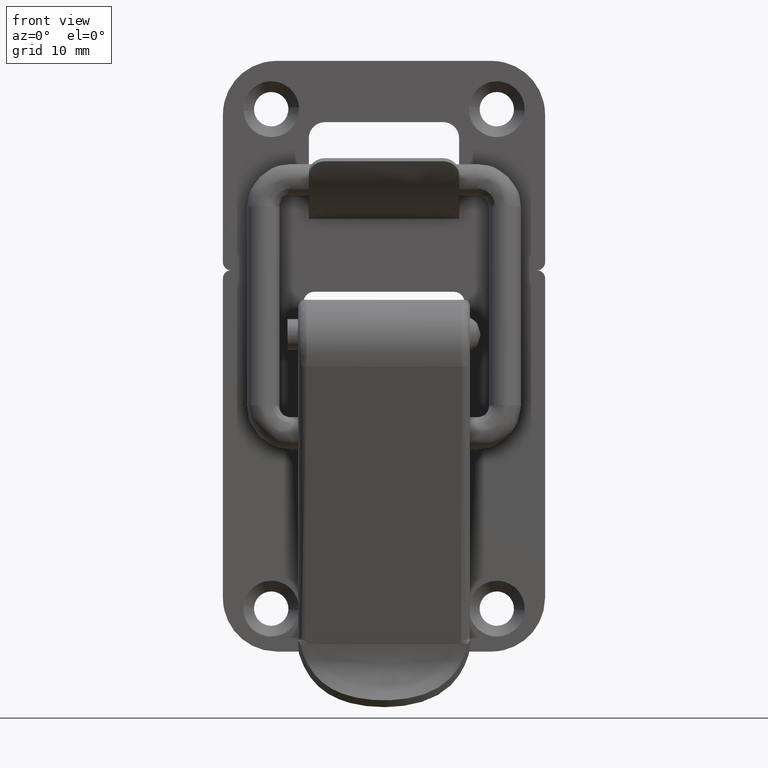
[diagram: clean part render]
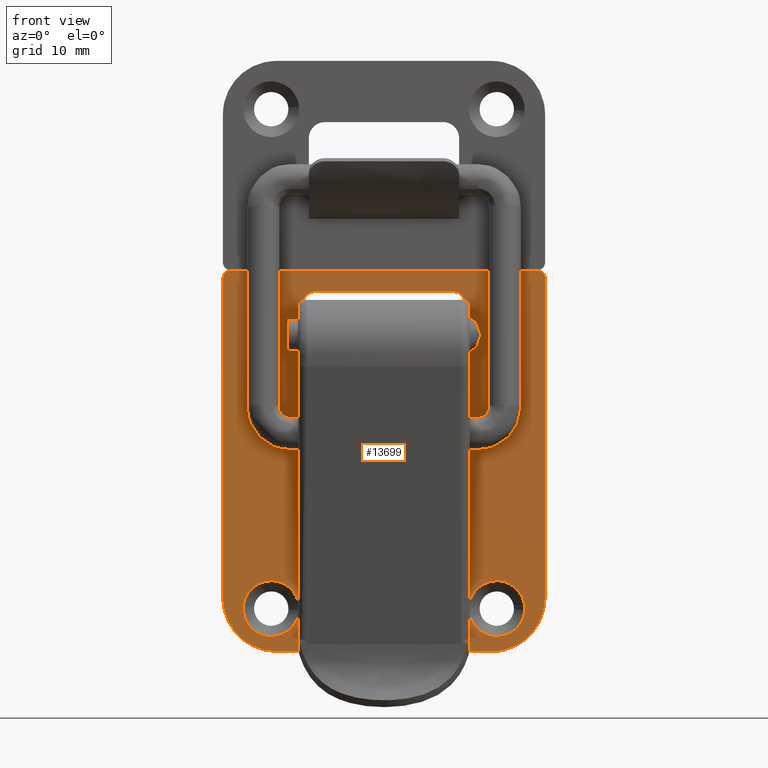
[diagram: same view with one face highlighted and labeled with its STEP entity id]
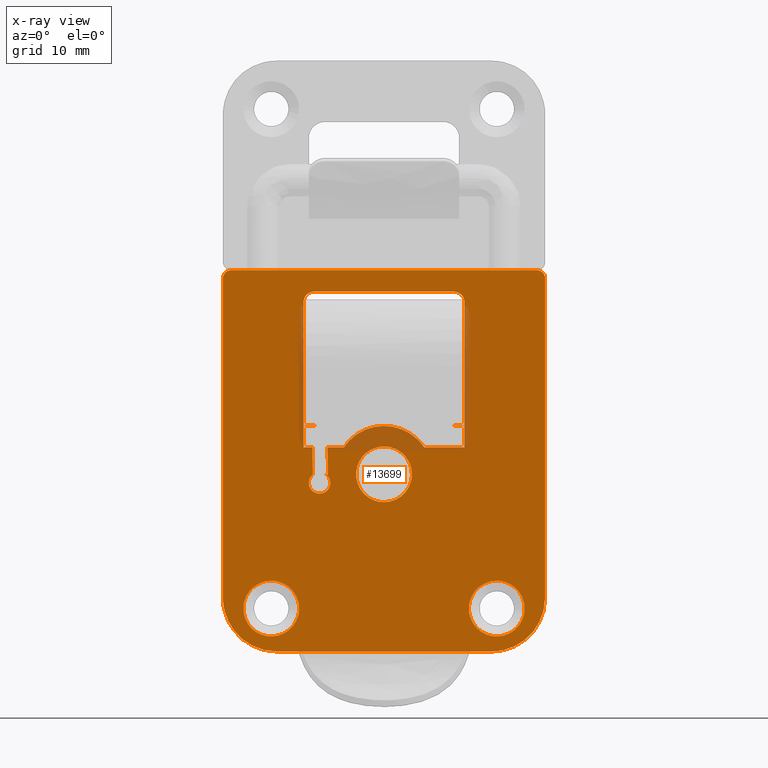
[diagram: x-ray of the same camera — body ghosted, the highlighted face saturated]
A machine part, front view. The second image highlights one B-rep face of the part: STEP entity #13699.
The next image is the same camera in x-ray: the body ghosted, the highlighted face saturated — about 3% of this face is hidden behind the body in this view.
In plain terms, the highlighted face is a freeform B-spline surface patch.
Its self-contained STEP definition (entity closure, byte-faithful):
#11216=CARTESIAN_POINT('',(1.499999999930922,2.581824768550200,-27.075877989346459));
#11217=VERTEX_POINT('',#11216);
#11218=CARTESIAN_POINT('',(1.500000000000000,0.0,-29.982766999999999));
#11219=VERTEX_POINT('',#11218);
#11220=CARTESIAN_POINT('',(1.499999999930923,2.581824768550199,-27.075877989346456));
#11221=CARTESIAN_POINT('',(1.500000000000000,2.600000000000001,-27.228784288361535));
#11222=CARTESIAN_POINT('',(1.500000000000000,2.600000000000000,-27.382767000000001));
#11223=CARTESIAN_POINT('',(1.500000000000000,2.600000000000001,-29.982766999999999));
#11224=CARTESIAN_POINT('',(1.500000000000000,0.0,-29.982766999999999));
#11232=(BOUNDED_CURVE()B_SPLINE_CURVE(2,(#11220,#11221,#11222,#11223,#11224),.UNSPECIFIED.,.F.,.U.)B_SPLINE_CURVE_WITH_KNOTS((3,2,3),(0.229562473445235,0.250000000000000,0.500000000000000),.UNSPECIFIED.)CURVE()GEOMETRIC_REPRESENTATION_ITEM()RATIONAL_B_SPLINE_CURVE((0.956026754049881,0.976055948251158,1.0,0.707106781186548,1.0))REPRESENTATION_ITEM(''));
#11233=EDGE_CURVE('',#11217,#11219,#11232,.T.);
#11235=CARTESIAN_POINT('',(1.499999999926370,-2.595150475936343,-27.541493203351070));
#11236=VERTEX_POINT('',#11235);
#11237=CARTESIAN_POINT('',(1.500000000000000,0.0,-29.982766999999999));
#11238=CARTESIAN_POINT('',(1.500000000000000,-2.445835772904915,-29.982766999999999));
#11239=CARTESIAN_POINT('',(1.499999999926370,-2.595150475936343,-27.541493203351070));
#11247=(BOUNDED_CURVE()B_SPLINE_CURVE(2,(#11237,#11238,#11239),.UNSPECIFIED.,.F.,.U.)B_SPLINE_CURVE_WITH_KNOTS((3,3),(0.500000000000000,0.739332962168040),.UNSPECIFIED.)CURVE()GEOMETRIC_REPRESENTATION_ITEM()RATIONAL_B_SPLINE_CURVE((1.0,0.719603993369779,0.976072041514758))REPRESENTATION_ITEM(''));
#11248=EDGE_CURVE('',#11219,#11236,#11247,.T.);
#11315=CARTESIAN_POINT('',(1.500000000000000,0.0,-24.782767000000000));
#11316=VERTEX_POINT('',#11315);
#11317=CARTESIAN_POINT('',(1.500000000000000,0.0,-24.782767000000000));
#11318=CARTESIAN_POINT('',(1.500000000000001,2.309253766504714,-24.782767000000000));
#11319=CARTESIAN_POINT('',(1.499999999930922,2.581824768550200,-27.075877989346463));
#11327=(BOUNDED_CURVE()B_SPLINE_CURVE(2,(#11317,#11318,#11319),.UNSPECIFIED.,.F.,.U.)B_SPLINE_CURVE_WITH_KNOTS((3,3),(0.0,0.229562473445235),.UNSPECIFIED.)CURVE()GEOMETRIC_REPRESENTATION_ITEM()RATIONAL_B_SPLINE_CURVE((1.0,0.731050832935390,0.956026754049881))REPRESENTATION_ITEM(''));
#11328=EDGE_CURVE('',#11316,#11217,#11327,.T.);
#11362=CARTESIAN_POINT('',(1.499999999926370,-2.595150475936344,-27.541493203351077));
#11363=CARTESIAN_POINT('',(1.500000000000000,-2.600000000000000,-27.462204185133835));
#11364=CARTESIAN_POINT('',(1.500000000000000,-2.600000000000000,-27.382767000000001));
#11365=CARTESIAN_POINT('',(1.500000000000000,-2.600000000000001,-24.782767000000000));
#11366=CARTESIAN_POINT('',(1.500000000000000,0.0,-24.782767000000000));
#11374=(BOUNDED_CURVE()B_SPLINE_CURVE(2,(#11362,#11363,#11364,#11365,#11366),.UNSPECIFIED.,.F.,.U.)B_SPLINE_CURVE_WITH_KNOTS((3,2,3),(0.739332962168040,0.750000000000000,1.0),.UNSPECIFIED.)CURVE()GEOMETRIC_REPRESENTATION_ITEM()RATIONAL_B_SPLINE_CURVE((0.976072041514759,0.987502787816769,1.0,0.707106781186548,1.0))REPRESENTATION_ITEM(''));
#11375=EDGE_CURVE('',#11236,#11316,#11374,.T.);
#11402=CARTESIAN_POINT('',(1.499999999930922,13.081824768550200,-39.575877989346473));
#11403=VERTEX_POINT('',#11402);
#11404=CARTESIAN_POINT('',(1.500000000000000,10.500000000000000,-42.482767000000003));
#11405=VERTEX_POINT('',#11404);
#11406=CARTESIAN_POINT('',(1.499999999930923,13.081824768550200,-39.575877989346466));
#11407=CARTESIAN_POINT('',(1.500000000000000,13.100000000000000,-39.728784288361531));
#11408=CARTESIAN_POINT('',(1.500000000000000,13.100000000000000,-39.882767000000001));
#11409=CARTESIAN_POINT('',(1.500000000000000,13.100000000000001,-42.482766999999996));
#11410=CARTESIAN_POINT('',(1.500000000000000,10.500000000000000,-42.482767000000003));
#11418=(BOUNDED_CURVE()B_SPLINE_CURVE(2,(#11406,#11407,#11408,#11409,#11410),.UNSPECIFIED.,.F.,.U.)B_SPLINE_CURVE_WITH_KNOTS((3,2,3),(0.229562473445235,0.250000000000000,0.500000000000000),.UNSPECIFIED.)CURVE()GEOMETRIC_REPRESENTATION_ITEM()RATIONAL_B_SPLINE_CURVE((0.956026754049880,0.976055948251157,1.0,0.707106781186548,1.0))REPRESENTATION_ITEM(''));
#11419=EDGE_CURVE('',#11403,#11405,#11418,.T.);
#11421=CARTESIAN_POINT('',(1.499999999926371,7.904849524063658,-40.041493203351081));
#11422=VERTEX_POINT('',#11421);
#11423=CARTESIAN_POINT('',(1.500000000000000,10.500000000000000,-42.482767000000003));
#11424=CARTESIAN_POINT('',(1.500000000000000,8.054164227095084,-42.482766999999981));
#11425=CARTESIAN_POINT('',(1.499999999926371,7.904849524063658,-40.041493203351081));
#11433=(BOUNDED_CURVE()B_SPLINE_CURVE(2,(#11423,#11424,#11425),.UNSPECIFIED.,.F.,.U.)B_SPLINE_CURVE_WITH_KNOTS((3,3),(0.500000000000000,0.739332962168040),.UNSPECIFIED.)CURVE()GEOMETRIC_REPRESENTATION_ITEM()RATIONAL_B_SPLINE_CURVE((1.0,0.719603993369779,0.976072041514758))REPRESENTATION_ITEM(''));
#11434=EDGE_CURVE('',#11405,#11422,#11433,.T.);
#11501=CARTESIAN_POINT('',(1.500000000000000,10.500000000000000,-37.282767000000000));
#11502=VERTEX_POINT('',#11501);
#11503=CARTESIAN_POINT('',(1.500000000000000,10.500000000000000,-37.282767000000000));
#11504=CARTESIAN_POINT('',(1.500000000000001,12.809253766504710,-37.282767000000007));
#11505=CARTESIAN_POINT('',(1.499999999930923,13.081824768550200,-39.575877989346466));
#11513=(BOUNDED_CURVE()B_SPLINE_CURVE(2,(#11503,#11504,#11505),.UNSPECIFIED.,.F.,.U.)B_SPLINE_CURVE_WITH_KNOTS((3,3),(0.0,0.229562473445235),.UNSPECIFIED.)CURVE()GEOMETRIC_REPRESENTATION_ITEM()RATIONAL_B_SPLINE_CURVE((1.0,0.731050832935390,0.956026754049880))REPRESENTATION_ITEM(''));
#11514=EDGE_CURVE('',#11502,#11403,#11513,.T.);
#11548=CARTESIAN_POINT('',(1.499999999926371,7.904849524063659,-40.041493203351081));
#11549=CARTESIAN_POINT('',(1.500000000000000,7.900000000000000,-39.962204185133842));
#11550=CARTESIAN_POINT('',(1.500000000000000,7.900000000000000,-39.882767000000001));
#11551=CARTESIAN_POINT('',(1.500000000000000,7.900000000000000,-37.282767000000007));
#11552=CARTESIAN_POINT('',(1.500000000000000,10.500000000000000,-37.282767000000000));
#11560=(BOUNDED_CURVE()B_SPLINE_CURVE(2,(#11548,#11549,#11550,#11551,#11552),.UNSPECIFIED.,.F.,.U.)B_SPLINE_CURVE_WITH_KNOTS((3,2,3),(0.739332962168040,0.750000000000000,1.0),.UNSPECIFIED.)CURVE()GEOMETRIC_REPRESENTATION_ITEM()RATIONAL_B_SPLINE_CURVE((0.976072041514759,0.987502787816769,1.0,0.707106781186548,1.0))REPRESENTATION_ITEM(''));
#11561=EDGE_CURVE('',#11422,#11502,#11560,.T.);
#11588=CARTESIAN_POINT('',(1.499999999930922,-7.918175231449801,-39.575877989346473));
#11589=VERTEX_POINT('',#11588);
#11590=CARTESIAN_POINT('',(1.500000000000000,-10.500000000000000,-42.482767000000003));
#11591=VERTEX_POINT('',#11590);
#11592=CARTESIAN_POINT('',(1.499999999930923,-7.918175231449801,-39.575877989346466));
#11593=CARTESIAN_POINT('',(1.500000000000000,-7.900000000000000,-39.728784288361531));
#11594=CARTESIAN_POINT('',(1.500000000000000,-7.900000000000000,-39.882767000000001));
#11595=CARTESIAN_POINT('',(1.500000000000000,-7.900000000000000,-42.482766999999996));
#11596=CARTESIAN_POINT('',(1.500000000000000,-10.500000000000000,-42.482767000000003));
#11604=(BOUNDED_CURVE()B_SPLINE_CURVE(2,(#11592,#11593,#11594,#11595,#11596),.UNSPECIFIED.,.F.,.U.)B_SPLINE_CURVE_WITH_KNOTS((3,2,3),(0.229562473445235,0.250000000000000,0.500000000000000),.UNSPECIFIED.)CURVE()GEOMETRIC_REPRESENTATION_ITEM()RATIONAL_B_SPLINE_CURVE((0.956026754049880,0.976055948251157,1.0,0.707106781186548,1.0))REPRESENTATION_ITEM(''));
#11605=EDGE_CURVE('',#11589,#11591,#11604,.T.);
#11607=CARTESIAN_POINT('',(1.499999999926370,-13.095150475936340,-40.041493203351067));
#11608=VERTEX_POINT('',#11607);
#11609=CARTESIAN_POINT('',(1.500000000000000,-10.500000000000000,-42.482767000000003));
#11610=CARTESIAN_POINT('',(1.500000000000000,-12.945835772904916,-42.482766999999981));
#11611=CARTESIAN_POINT('',(1.499999999926370,-13.095150475936348,-40.041493203351074));
#11619=(BOUNDED_CURVE()B_SPLINE_CURVE(2,(#11609,#11610,#11611),.UNSPECIFIED.,.F.,.U.)B_SPLINE_CURVE_WITH_KNOTS((3,3),(0.500000000000000,0.739332962168040),.UNSPECIFIED.)CURVE()GEOMETRIC_REPRESENTATION_ITEM()RATIONAL_B_SPLINE_CURVE((1.0,0.719603993369779,0.976072041514758))REPRESENTATION_ITEM(''));
#11620=EDGE_CURVE('',#11591,#11608,#11619,.T.);
#11687=CARTESIAN_POINT('',(1.500000000000000,-10.500000000000000,-37.282767000000000));
#11688=VERTEX_POINT('',#11687);
#11689=CARTESIAN_POINT('',(1.500000000000000,-10.500000000000000,-37.282767000000000));
#11690=CARTESIAN_POINT('',(1.500000000000001,-8.190746233495293,-37.282767000000007));
#11691=CARTESIAN_POINT('',(1.499999999930923,-7.918175231449801,-39.575877989346466));
#11699=(BOUNDED_CURVE()B_SPLINE_CURVE(2,(#11689,#11690,#11691),.UNSPECIFIED.,.F.,.U.)B_SPLINE_CURVE_WITH_KNOTS((3,3),(0.0,0.229562473445235),.UNSPECIFIED.)CURVE()GEOMETRIC_REPRESENTATION_ITEM()RATIONAL_B_SPLINE_CURVE((1.0,0.731050832935390,0.956026754049880))REPRESENTATION_ITEM(''));
#11700=EDGE_CURVE('',#11688,#11589,#11699,.T.);
#11734=CARTESIAN_POINT('',(1.499999999926369,-13.095150475936348,-40.041493203351067));
#11735=CARTESIAN_POINT('',(1.500000000000000,-13.099999999999996,-39.962204185133842));
#11736=CARTESIAN_POINT('',(1.500000000000000,-13.100000000000000,-39.882767000000001));
#11737=CARTESIAN_POINT('',(1.500000000000000,-13.100000000000001,-37.282767000000007));
#11738=CARTESIAN_POINT('',(1.500000000000000,-10.500000000000000,-37.282767000000000));
#11746=(BOUNDED_CURVE()B_SPLINE_CURVE(2,(#11734,#11735,#11736,#11737,#11738),.UNSPECIFIED.,.F.,.U.)B_SPLINE_CURVE_WITH_KNOTS((3,2,3),(0.739332962168040,0.750000000000000,1.0),.UNSPECIFIED.)CURVE()GEOMETRIC_REPRESENTATION_ITEM()RATIONAL_B_SPLINE_CURVE((0.976072041514760,0.987502787816770,1.0,0.707106781186548,1.0))REPRESENTATION_ITEM(''));
#11747=EDGE_CURVE('',#11608,#11688,#11746,.T.);
#11778=CARTESIAN_POINT('',(1.500000000000000,5.399999999999861,-27.382767000000001));
#11779=VERTEX_POINT('',#11778);
#11780=CARTESIAN_POINT('',(1.500000000000055,5.347897611878016,-28.940897909147921));
#11781=VERTEX_POINT('',#11780);
#11782=CARTESIAN_POINT('',(1.500000000000055,5.399999999999865,-27.382767000000001));
#11783=CARTESIAN_POINT('',(1.500000000000056,4.823392623955088,-27.815222532033740));
#11784=CARTESIAN_POINT('',(1.500000000000055,5.051316701949514,-28.498994766016821));
#11785=CARTESIAN_POINT('',(1.500000000000055,5.138612612298661,-28.760882497064181));
#11786=CARTESIAN_POINT('',(1.500000000000056,5.347897611878016,-28.940897909147921));
#11794=(BOUNDED_CURVE()B_SPLINE_CURVE(2,(#11782,#11783,#11784,#11785,#11786),.UNSPECIFIED.,.F.,.U.)B_SPLINE_CURVE_WITH_KNOTS((3,2,3),(0.0,0.250000000000000,0.358372436540437),.UNSPECIFIED.)CURVE()GEOMETRIC_REPRESENTATION_ITEM()RATIONAL_B_SPLINE_CURVE((1.0,0.811242185175586,1.0,0.918175422765719,0.907291075961599))REPRESENTATION_ITEM(''));
#11795=EDGE_CURVE('',#11779,#11781,#11794,.T.);
#11797=CARTESIAN_POINT('',(1.500000000000055,6.600000000000140,-27.382767000000001));
#11798=VERTEX_POINT('',#11797);
#11812=CARTESIAN_POINT('',(1.500000000000055,5.975716783454459,-29.182472119219661));
#11813=VERTEX_POINT('',#11812);
#11814=CARTESIAN_POINT('',(1.500000000000055,5.975716783454459,-29.182472119219661));
#11815=CARTESIAN_POINT('',(1.500000000000055,5.987856601227123,-29.182766999999899));
#11816=CARTESIAN_POINT('',(1.500000000000055,6.0,-29.182766999999899));
#11817=CARTESIAN_POINT('',(1.500000000000056,6.720759220056062,-29.182766999999899));
#11818=CARTESIAN_POINT('',(1.500000000000055,6.948683298050487,-28.498994766016821));
#11819=CARTESIAN_POINT('',(1.500000000000056,7.176607376044913,-27.815222532033740));
#11820=CARTESIAN_POINT('',(1.500000000000055,6.600000000000137,-27.382767000000001));
#11828=(BOUNDED_CURVE()B_SPLINE_CURVE(2,(#11814,#11815,#11816,#11817,#11818,#11819,#11820),.UNSPECIFIED.,.F.,.U.)B_SPLINE_CURVE_WITH_KNOTS((3,2,2,3),(0.494828216281739,0.500000000000000,0.750000000000000,1.0),.UNSPECIFIED.)CURVE()GEOMETRIC_REPRESENTATION_ITEM()RATIONAL_B_SPLINE_CURVE((0.992351843916442,0.996095141626386,1.0,0.811242185175586,1.0,0.811242185175586,1.0))REPRESENTATION_ITEM(''));
#11829=EDGE_CURVE('',#11813,#11798,#11828,.T.);
#11963=CARTESIAN_POINT('',(1.500000000000055,5.347897611878016,-28.940897909147925));
#11964=CARTESIAN_POINT('',(1.500000000000056,5.618667530993266,-29.173799257392574));
#11965=CARTESIAN_POINT('',(1.500000000000055,5.975716783454459,-29.182472119219661));
#11973=(BOUNDED_CURVE()B_SPLINE_CURVE(2,(#11963,#11964,#11965),.UNSPECIFIED.,.F.,.U.)B_SPLINE_CURVE_WITH_KNOTS((3,3),(0.358372436540437,0.494828216281738),.UNSPECIFIED.)CURVE()GEOMETRIC_REPRESENTATION_ITEM()RATIONAL_B_SPLINE_CURVE((0.907291075961599,0.893586188653130,0.992351843916441))REPRESENTATION_ITEM(''));
#11974=EDGE_CURVE('',#11781,#11813,#11973,.T.);
#12151=CARTESIAN_POINT('',(1.499999999999946,6.661254657652240,-24.882766999999902));
#12152=VERTEX_POINT('',#12151);
#12168=CARTESIAN_POINT('',(1.500000000000000,6.617615745758230,-27.382767000000001));
#12169=VERTEX_POINT('',#12168);
#12170=CARTESIAN_POINT('',(1.499999999999946,6.661254657652240,-24.882766999999902));
#12171=CARTESIAN_POINT('',(1.500000000000000,6.617615745758230,-27.382767000000001));
#12172=QUASI_UNIFORM_CURVE('',1,(#12170,#12171),.UNSPECIFIED.,.F.,.U.);
#12173=EDGE_CURVE('',#12152,#12169,#12172,.T.);
#12212=CARTESIAN_POINT('',(1.500000000000000,5.217402474284070,-27.382767000000001));
#12213=VERTEX_POINT('',#12212);
#12229=CARTESIAN_POINT('',(1.500000000000000,5.261041386178080,-24.882766999999902));
#12230=VERTEX_POINT('',#12229);
#12231=CARTESIAN_POINT('',(1.500000000000000,5.217402474284070,-27.382767000000001));
#12232=CARTESIAN_POINT('',(1.500000000000000,5.261041386178080,-24.882766999999902));
#12233=QUASI_UNIFORM_CURVE('',1,(#12231,#12232),.UNSPECIFIED.,.F.,.U.);
#12234=EDGE_CURVE('',#12213,#12230,#12233,.T.);
#12284=CARTESIAN_POINT('',(1.500000000000000,6.617615745758230,-27.382767000000001));
#12285=CARTESIAN_POINT('',(1.500000000000055,6.600000000000140,-27.382767000000001));
#12286=QUASI_UNIFORM_CURVE('',1,(#12284,#12285),.UNSPECIFIED.,.F.,.U.);
#12287=EDGE_CURVE('',#12169,#11798,#12286,.T.);
#12290=CARTESIAN_POINT('',(1.500000000000000,5.399999999999861,-27.382767000000001));
#12291=CARTESIAN_POINT('',(1.500000000000000,5.217402474284070,-27.382767000000001));
#12292=QUASI_UNIFORM_CURVE('',1,(#12290,#12291),.UNSPECIFIED.,.F.,.U.);
#12293=EDGE_CURVE('',#11779,#12213,#12292,.T.);
#12341=CARTESIAN_POINT('',(1.499999999999946,-6.499999999999890,-22.882767000000001));
#12342=VERTEX_POINT('',#12341);
#12356=CARTESIAN_POINT('',(1.500000000000000,-6.499999999999890,-22.850028881037801));
#12357=VERTEX_POINT('',#12356);
#12358=CARTESIAN_POINT('',(1.500000000000000,-6.499999999999890,-22.850028881037801));
#12359=CARTESIAN_POINT('',(1.499999999999946,-6.499999999999890,-22.882767000000001));
#12360=QUASI_UNIFORM_CURVE('',1,(#12358,#12359),.UNSPECIFIED.,.F.,.U.);
#12361=EDGE_CURVE('',#12357,#12342,#12360,.T.);
#12387=CARTESIAN_POINT('',(1.499999999999946,6.500000000000110,-22.882767000000001));
#12388=VERTEX_POINT('',#12387);
#12424=CARTESIAN_POINT('',(1.500000000000000,6.500000000000110,-22.850028881037801));
#12425=VERTEX_POINT('',#12424);
#12431=CARTESIAN_POINT('',(1.499999999999946,6.500000000000110,-22.882767000000001));
#12432=CARTESIAN_POINT('',(1.500000000000000,6.500000000000110,-22.850028881037801));
#12433=QUASI_UNIFORM_CURVE('',1,(#12431,#12432),.UNSPECIFIED.,.F.,.U.);
#12434=EDGE_CURVE('',#12388,#12425,#12433,.T.);
#12479=CARTESIAN_POINT('',(1.500000000000000,7.500000000000000,-18.382766999999902));
#12480=VERTEX_POINT('',#12479);
#12486=CARTESIAN_POINT('',(1.500000000000000,7.500000000000000,-22.850028881037801));
#12487=VERTEX_POINT('',#12486);
#12488=CARTESIAN_POINT('',(1.500000000000000,7.500000000000000,-22.850028881037801));
#12489=CARTESIAN_POINT('',(1.500000000000000,7.500000000000000,-18.382766999999902));
#12490=QUASI_UNIFORM_CURVE('',1,(#12488,#12489),.UNSPECIFIED.,.F.,.U.);
#12491=EDGE_CURVE('',#12487,#12480,#12490,.T.);
#12605=CARTESIAN_POINT('',(1.500000000000000,6.500000000000110,-22.850028881037801));
#12606=CARTESIAN_POINT('',(1.500000000000000,7.500000000000000,-22.850028881037801));
#12607=QUASI_UNIFORM_CURVE('',1,(#12605,#12606),.UNSPECIFIED.,.F.,.U.);
#12608=EDGE_CURVE('',#12425,#12487,#12607,.T.);
#12663=CARTESIAN_POINT('',(1.500000000000000,-7.500000000000000,-22.850028881037801));
#12664=VERTEX_POINT('',#12663);
#12678=CARTESIAN_POINT('',(1.499999999999946,-7.500000000000000,-18.382766999999902));
#12679=VERTEX_POINT('',#12678);
#12680=CARTESIAN_POINT('',(1.500000000000000,-7.500000000000000,-22.850028881037801));
#12681=CARTESIAN_POINT('',(1.499999999999946,-7.500000000000000,-18.382766999999902));
#12682=QUASI_UNIFORM_CURVE('',1,(#12680,#12681),.UNSPECIFIED.,.F.,.U.);
#12683=EDGE_CURVE('',#12664,#12679,#12682,.T.);
#12835=CARTESIAN_POINT('',(1.500000000000000,-6.499999999999890,-22.850028881037801));
#12836=CARTESIAN_POINT('',(1.500000000000000,-7.500000000000000,-22.850028881037801));
#12837=QUASI_UNIFORM_CURVE('',1,(#12835,#12836),.UNSPECIFIED.,.F.,.U.);
#12838=EDGE_CURVE('',#12357,#12664,#12837,.T.);
#12873=CARTESIAN_POINT('',(1.500000000000000,-6.499999999999890,-10.382766999999999));
#12874=VERTEX_POINT('',#12873);
#12880=CARTESIAN_POINT('',(1.499999999999946,6.500000000000110,-10.382766999999919));
#12881=VERTEX_POINT('',#12880);
#12882=CARTESIAN_POINT('',(1.499999999999946,6.500000000000110,-10.382766999999919));
#12883=CARTESIAN_POINT('',(1.500000000000000,-6.499999999999890,-10.382766999999999));
#12884=QUASI_UNIFORM_CURVE('',1,(#12882,#12883),.UNSPECIFIED.,.F.,.U.);
#12885=EDGE_CURVE('',#12881,#12874,#12884,.T.);
#12925=CARTESIAN_POINT('',(1.499999999999946,7.500000000000000,-11.382766999999919));
#12926=VERTEX_POINT('',#12925);
#12927=CARTESIAN_POINT('',(1.499999999999946,7.500000000000000,-11.382766999999919));
#12928=CARTESIAN_POINT('',(1.499999999999946,7.500000000000110,-10.382766999999918));
#12929=CARTESIAN_POINT('',(1.499999999999946,6.500000000000110,-10.382766999999919));
#12937=(BOUNDED_CURVE()B_SPLINE_CURVE(2,(#12927,#12928,#12929),.UNSPECIFIED.,.F.,.U.)CURVE()GEOMETRIC_REPRESENTATION_ITEM()QUASI_UNIFORM_CURVE()RATIONAL_B_SPLINE_CURVE((1.0,0.707106781186548,1.0))REPRESENTATION_ITEM(''));
#12938=EDGE_CURVE('',#12926,#12881,#12937,.T.);
#12959=CARTESIAN_POINT('',(1.500000000000000,7.500000000000000,-18.382766999999902));
#12960=CARTESIAN_POINT('',(1.499999999999946,7.500000000000000,-11.382766999999919));
#12961=QUASI_UNIFORM_CURVE('',1,(#12959,#12960),.UNSPECIFIED.,.F.,.U.);
#12962=EDGE_CURVE('',#12480,#12926,#12961,.T.);
#13014=CARTESIAN_POINT('',(1.499999999999946,7.500000000000000,-22.882767000000001));
#13015=VERTEX_POINT('',#13014);
#13022=CARTESIAN_POINT('',(1.499999999999946,7.500000000000000,-22.882767000000001));
#13023=CARTESIAN_POINT('',(1.499999999999946,6.500000000000110,-22.882767000000001));
#13024=QUASI_UNIFORM_CURVE('',1,(#13022,#13023),.UNSPECIFIED.,.F.,.U.);
#13025=EDGE_CURVE('',#13015,#12388,#13024,.T.);
#13043=CARTESIAN_POINT('',(1.499999999999946,7.500000000000000,-24.882766999999902));
#13044=VERTEX_POINT('',#13043);
#13045=CARTESIAN_POINT('',(1.499999999999946,7.500000000000000,-24.882766999999902));
#13046=CARTESIAN_POINT('',(1.499999999999946,7.500000000000000,-22.882767000000001));
#13047=QUASI_UNIFORM_CURVE('',1,(#13045,#13046),.UNSPECIFIED.,.F.,.U.);
#13048=EDGE_CURVE('',#13044,#13015,#13047,.T.);
#13091=CARTESIAN_POINT('',(1.499999999999946,3.741657386773875,-24.882766999999902));
#13092=VERTEX_POINT('',#13091);
#13098=CARTESIAN_POINT('',(1.499999999999946,-3.741657386773875,-24.882766999999902));
#13099=VERTEX_POINT('',#13098);
#13100=CARTESIAN_POINT('',(1.499999999999946,3.741657386773875,-24.882766999999902));
#13101=CARTESIAN_POINT('',(1.499999999999946,2.405351177211743,-22.882766999999998));
#13102=CARTESIAN_POINT('',(1.499999999999946,0.0,-22.882767000000001));
#13103=CARTESIAN_POINT('',(1.499999999999946,-2.405351177211742,-22.882766999999998));
#13104=CARTESIAN_POINT('',(1.499999999999946,-3.741657386773874,-24.882766999999902));
#13112=(BOUNDED_CURVE()B_SPLINE_CURVE(2,(#13100,#13101,#13102,#13103,#13104),.UNSPECIFIED.,.F.,.U.)B_SPLINE_CURVE_WITH_KNOTS((3,2,3),(0.0,0.500000000000000,1.0),.UNSPECIFIED.)CURVE()GEOMETRIC_REPRESENTATION_ITEM()RATIONAL_B_SPLINE_CURVE((1.0,0.881917103688203,1.0,0.881917103688203,1.0))REPRESENTATION_ITEM(''));
#13113=EDGE_CURVE('',#13092,#13099,#13112,.T.);
#13136=CARTESIAN_POINT('',(1.499999999999946,-7.500000000000000,-24.882766999999902));
#13137=VERTEX_POINT('',#13136);
#13138=CARTESIAN_POINT('',(1.499999999999946,-7.500000000000000,-24.882766999999902));
#13139=CARTESIAN_POINT('',(1.499999999999946,-3.741657386773875,-24.882766999999902));
#13140=QUASI_UNIFORM_CURVE('',1,(#13138,#13139),.UNSPECIFIED.,.F.,.U.);
#13141=EDGE_CURVE('',#13137,#13099,#13140,.T.);
#13162=CARTESIAN_POINT('',(1.499999999999946,-7.500000000000000,-22.882767000000001));
#13163=VERTEX_POINT('',#13162);
#13164=CARTESIAN_POINT('',(1.499999999999946,-7.500000000000000,-22.882767000000001));
#13165=CARTESIAN_POINT('',(1.499999999999946,-7.500000000000000,-24.882766999999902));
#13166=QUASI_UNIFORM_CURVE('',1,(#13164,#13165),.UNSPECIFIED.,.F.,.U.);
#13167=EDGE_CURVE('',#13163,#13137,#13166,.T.);
#13182=CARTESIAN_POINT('',(1.499999999999946,-6.499999999999890,-22.882767000000001));
#13183=CARTESIAN_POINT('',(1.499999999999946,-7.500000000000000,-22.882767000000001));
#13184=QUASI_UNIFORM_CURVE('',1,(#13182,#13183),.UNSPECIFIED.,.F.,.U.);
#13185=EDGE_CURVE('',#12342,#13163,#13184,.T.);
#13246=CARTESIAN_POINT('',(1.499999999999946,-7.500000000000000,-11.382766999999919));
#13247=VERTEX_POINT('',#13246);
#13248=CARTESIAN_POINT('',(1.499999999999946,-7.500000000000000,-11.382766999999919));
#13249=CARTESIAN_POINT('',(1.499999999999946,-7.500000000000000,-18.382766999999902));
#13250=QUASI_UNIFORM_CURVE('',1,(#13248,#13249),.UNSPECIFIED.,.F.,.U.);
#13251=EDGE_CURVE('',#13247,#12679,#13250,.T.);
#13289=CARTESIAN_POINT('',(1.500000000000000,-6.499999999999890,-10.382766999999999));
#13290=CARTESIAN_POINT('',(1.499999999999946,-7.499999999999891,-10.382766999999918));
#13291=CARTESIAN_POINT('',(1.499999999999946,-7.500000000000000,-11.382766999999919));
#13299=(BOUNDED_CURVE()B_SPLINE_CURVE(2,(#13289,#13290,#13291),.UNSPECIFIED.,.F.,.U.)CURVE()GEOMETRIC_REPRESENTATION_ITEM()QUASI_UNIFORM_CURVE()RATIONAL_B_SPLINE_CURVE((1.0,0.707106781186548,1.0))REPRESENTATION_ITEM(''));
#13300=EDGE_CURVE('',#12874,#13247,#13299,.T.);
#13320=CARTESIAN_POINT('',(1.499999999999946,14.250000000000000,-8.382766999999999));
#13321=VERTEX_POINT('',#13320);
#13327=CARTESIAN_POINT('',(1.499999999999946,-14.250000000000000,-8.382766999999999));
#13328=VERTEX_POINT('',#13327);
#13329=CARTESIAN_POINT('',(1.499999999999946,14.250000000000000,-8.382766999999999));
#13330=CARTESIAN_POINT('',(1.499999999999946,-14.250000000000000,-8.382766999999999));
#13331=QUASI_UNIFORM_CURVE('',1,(#13329,#13330),.UNSPECIFIED.,.F.,.U.);
#13332=EDGE_CURVE('',#13321,#13328,#13331,.T.);
#13371=CARTESIAN_POINT('',(1.499999999999946,15.0,-9.132766999999999));
#13372=VERTEX_POINT('',#13371);
#13378=CARTESIAN_POINT('',(1.499999999999946,15.0,-9.132766999999999));
#13379=CARTESIAN_POINT('',(1.499999999999946,15.000000000000009,-8.382766999999999));
#13380=CARTESIAN_POINT('',(1.499999999999946,14.250000000000000,-8.382766999999999));
#13388=(BOUNDED_CURVE()B_SPLINE_CURVE(2,(#13378,#13379,#13380),.UNSPECIFIED.,.F.,.U.)CURVE()GEOMETRIC_REPRESENTATION_ITEM()QUASI_UNIFORM_CURVE()RATIONAL_B_SPLINE_CURVE((1.0,0.707106781186548,1.0))REPRESENTATION_ITEM(''));
#13389=EDGE_CURVE('',#13372,#13321,#13388,.T.);
#13407=CARTESIAN_POINT('',(1.499999999999946,15.0,-38.882767000000001));
#13408=VERTEX_POINT('',#13407);
#13414=CARTESIAN_POINT('',(1.499999999999946,15.0,-38.882767000000001));
#13415=CARTESIAN_POINT('',(1.499999999999946,15.0,-9.132766999999999));
#13416=QUASI_UNIFORM_CURVE('',1,(#13414,#13415),.UNSPECIFIED.,.F.,.U.);
#13417=EDGE_CURVE('',#13408,#13372,#13416,.T.);
#13452=CARTESIAN_POINT('',(1.499999999999946,10.0,-43.882767000000001));
#13453=VERTEX_POINT('',#13452);
#13459=CARTESIAN_POINT('',(1.499999999999946,10.0,-43.882766999999987));
#13460=CARTESIAN_POINT('',(1.499999999999946,14.999999999999995,-43.882767000000001));
#13461=CARTESIAN_POINT('',(1.499999999999946,15.0,-38.882767000000001));
#13469=(BOUNDED_CURVE()B_SPLINE_CURVE(2,(#13459,#13460,#13461),.UNSPECIFIED.,.F.,.U.)CURVE()GEOMETRIC_REPRESENTATION_ITEM()QUASI_UNIFORM_CURVE()RATIONAL_B_SPLINE_CURVE((1.0,0.707106781186548,1.0))REPRESENTATION_ITEM(''));
#13470=EDGE_CURVE('',#13453,#13408,#13469,.T.);
#13488=CARTESIAN_POINT('',(1.499999999999946,-9.999999999999890,-43.882767000000001));
#13489=VERTEX_POINT('',#13488);
#13495=CARTESIAN_POINT('',(1.499999999999946,-9.999999999999890,-43.882767000000001));
#13496=CARTESIAN_POINT('',(1.499999999999946,10.0,-43.882767000000001));
#13497=QUASI_UNIFORM_CURVE('',1,(#13495,#13496),.UNSPECIFIED.,.F.,.U.);
#13498=EDGE_CURVE('',#13489,#13453,#13497,.T.);
#13533=CARTESIAN_POINT('',(1.499999999999946,-15.0,-38.882767000000001));
#13534=VERTEX_POINT('',#13533);
#13540=CARTESIAN_POINT('',(1.499999999999946,-14.999999999999890,-38.882767000000001));
#13541=CARTESIAN_POINT('',(1.499999999999946,-14.999999999999897,-43.882767000000001));
#13542=CARTESIAN_POINT('',(1.499999999999946,-9.999999999999890,-43.882766999999987));
#13550=(BOUNDED_CURVE()B_SPLINE_CURVE(2,(#13540,#13541,#13542),.UNSPECIFIED.,.F.,.U.)CURVE()GEOMETRIC_REPRESENTATION_ITEM()QUASI_UNIFORM_CURVE()RATIONAL_B_SPLINE_CURVE((1.0,0.707106781186548,1.0))REPRESENTATION_ITEM(''));
#13551=EDGE_CURVE('',#13534,#13489,#13550,.T.);
#13569=CARTESIAN_POINT('',(1.499999999999946,-15.0,-9.132766999999999));
#13570=VERTEX_POINT('',#13569);
#13576=CARTESIAN_POINT('',(1.499999999999946,-15.0,-9.132766999999999));
#13577=CARTESIAN_POINT('',(1.499999999999946,-15.0,-38.882767000000001));
#13578=QUASI_UNIFORM_CURVE('',1,(#13576,#13577),.UNSPECIFIED.,.F.,.U.);
#13579=EDGE_CURVE('',#13570,#13534,#13578,.T.);
#13613=CARTESIAN_POINT('',(1.499999999999946,-14.250000000000000,-8.382766999999999));
#13614=CARTESIAN_POINT('',(1.499999999999946,-15.000000000000009,-8.382766999999999));
#13615=CARTESIAN_POINT('',(1.499999999999946,-15.0,-9.132766999999999));
#13623=(BOUNDED_CURVE()B_SPLINE_CURVE(2,(#13613,#13614,#13615),.UNSPECIFIED.,.F.,.U.)CURVE()GEOMETRIC_REPRESENTATION_ITEM()QUASI_UNIFORM_CURVE()RATIONAL_B_SPLINE_CURVE((1.0,0.707106781186548,1.0))REPRESENTATION_ITEM(''));
#13624=EDGE_CURVE('',#13328,#13570,#13623,.T.);
#13630=CARTESIAN_POINT('',(1.500000000000000,-16.498499941854181,-6.609541735557286));
#13631=CARTESIAN_POINT('',(1.500000000000000,16.498500746516889,-6.609541735557286));
#13632=CARTESIAN_POINT('',(1.500000000000000,-16.498499941854181,-45.655992899232182));
#13633=CARTESIAN_POINT('',(1.500000000000000,16.498500746516889,-45.655992899232182));
#13634=B_SPLINE_SURFACE_WITH_KNOTS('',1,1,((#13630,#13632),(#13631,#13633)),.UNSPECIFIED.,.F.,.F.,.U.,(2,2),(2,2),(0.0,32.997000688371060),(0.0,39.046451163674902),.UNSPECIFIED.);
#13635=ORIENTED_EDGE('',*,*,#13624,.F.);
#13636=ORIENTED_EDGE('',*,*,#13332,.F.);
#13637=ORIENTED_EDGE('',*,*,#13389,.F.);
#13638=ORIENTED_EDGE('',*,*,#13417,.F.);
#13639=ORIENTED_EDGE('',*,*,#13470,.F.);
#13640=ORIENTED_EDGE('',*,*,#13498,.F.);
#13641=ORIENTED_EDGE('',*,*,#13551,.F.);
#13642=ORIENTED_EDGE('',*,*,#13579,.F.);
#13643=EDGE_LOOP('',(#13635,#13636,#13637,#13638,#13639,#13640,#13641,#13642));
#13644=FACE_OUTER_BOUND('',#13643,.T.);
#13645=CARTESIAN_POINT('',(1.499999999999946,6.661254657652240,-24.882766999999902));
#13646=CARTESIAN_POINT('',(1.499999999999946,7.500000000000000,-24.882766999999902));
#13647=QUASI_UNIFORM_CURVE('',1,(#13645,#13646),.UNSPECIFIED.,.F.,.U.);
#13648=EDGE_CURVE('',#12152,#13044,#13647,.T.);
#13649=ORIENTED_EDGE('',*,*,#13648,.T.);
#13650=ORIENTED_EDGE('',*,*,#13048,.T.);
#13651=ORIENTED_EDGE('',*,*,#13025,.T.);
#13652=ORIENTED_EDGE('',*,*,#12434,.T.);
#13653=ORIENTED_EDGE('',*,*,#12608,.T.);
#13654=ORIENTED_EDGE('',*,*,#12491,.T.);
#13655=ORIENTED_EDGE('',*,*,#12962,.T.);
#13656=ORIENTED_EDGE('',*,*,#12938,.T.);
#13657=ORIENTED_EDGE('',*,*,#12885,.T.);
#13658=ORIENTED_EDGE('',*,*,#13300,.T.);
#13659=ORIENTED_EDGE('',*,*,#13251,.T.);
#13660=ORIENTED_EDGE('',*,*,#12683,.F.);
#13661=ORIENTED_EDGE('',*,*,#12838,.F.);
#13662=ORIENTED_EDGE('',*,*,#12361,.T.);
#13663=ORIENTED_EDGE('',*,*,#13185,.T.);
#13664=ORIENTED_EDGE('',*,*,#13167,.T.);
#13665=ORIENTED_EDGE('',*,*,#13141,.T.);
#13666=ORIENTED_EDGE('',*,*,#13113,.F.);
#13667=CARTESIAN_POINT('',(1.499999999999946,3.741657386773875,-24.882766999999902));
#13668=CARTESIAN_POINT('',(1.500000000000000,5.261041386178080,-24.882766999999902));
#13669=QUASI_UNIFORM_CURVE('',1,(#13667,#13668),.UNSPECIFIED.,.F.,.U.);
#13670=EDGE_CURVE('',#13092,#12230,#13669,.T.);
#13671=ORIENTED_EDGE('',*,*,#13670,.T.);
#13672=ORIENTED_EDGE('',*,*,#12234,.F.);
#13673=ORIENTED_EDGE('',*,*,#12293,.F.);
#13674=ORIENTED_EDGE('',*,*,#11795,.T.);
#13675=ORIENTED_EDGE('',*,*,#11974,.T.);
#13676=ORIENTED_EDGE('',*,*,#11829,.T.);
#13677=ORIENTED_EDGE('',*,*,#12287,.F.);
#13678=ORIENTED_EDGE('',*,*,#12173,.F.);
#13679=EDGE_LOOP('',(#13649,#13650,#13651,#13652,#13653,#13654,#13655,#13656,#13657,#13658,#13659,#13660,#13661,#13662,#13663,#13664,#13665,#13666,#13671,#13672,#13673,#13674,#13675,#13676,#13677,#13678));
#13680=FACE_BOUND('',#13679,.T.);
#13681=ORIENTED_EDGE('',*,*,#11620,.F.);
#13682=ORIENTED_EDGE('',*,*,#11605,.F.);
#13683=ORIENTED_EDGE('',*,*,#11700,.F.);
#13684=ORIENTED_EDGE('',*,*,#11747,.F.);
#13685=EDGE_LOOP('',(#13681,#13682,#13683,#13684));
#13686=FACE_BOUND('',#13685,.T.);
#13687=ORIENTED_EDGE('',*,*,#11434,.F.);
#13688=ORIENTED_EDGE('',*,*,#11419,.F.);
#13689=ORIENTED_EDGE('',*,*,#11514,.F.);
#13690=ORIENTED_EDGE('',*,*,#11561,.F.);
#13691=EDGE_LOOP('',(#13687,#13688,#13689,#13690));
#13692=FACE_BOUND('',#13691,.T.);
#13693=ORIENTED_EDGE('',*,*,#11248,.F.);
#13694=ORIENTED_EDGE('',*,*,#11233,.F.);
#13695=ORIENTED_EDGE('',*,*,#11328,.F.);
#13696=ORIENTED_EDGE('',*,*,#11375,.F.);
#13697=EDGE_LOOP('',(#13693,#13694,#13695,#13696));
#13698=FACE_BOUND('',#13697,.T.);
#13699=ADVANCED_FACE('',(#13644,#13680,#13686,#13692,#13698),#13634,.T.);